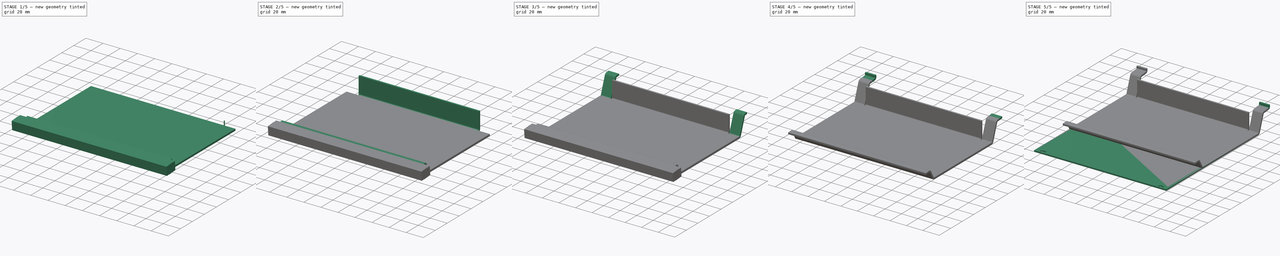
[diagram: build sequence overview — one tinted view per stage of 5, left to right]
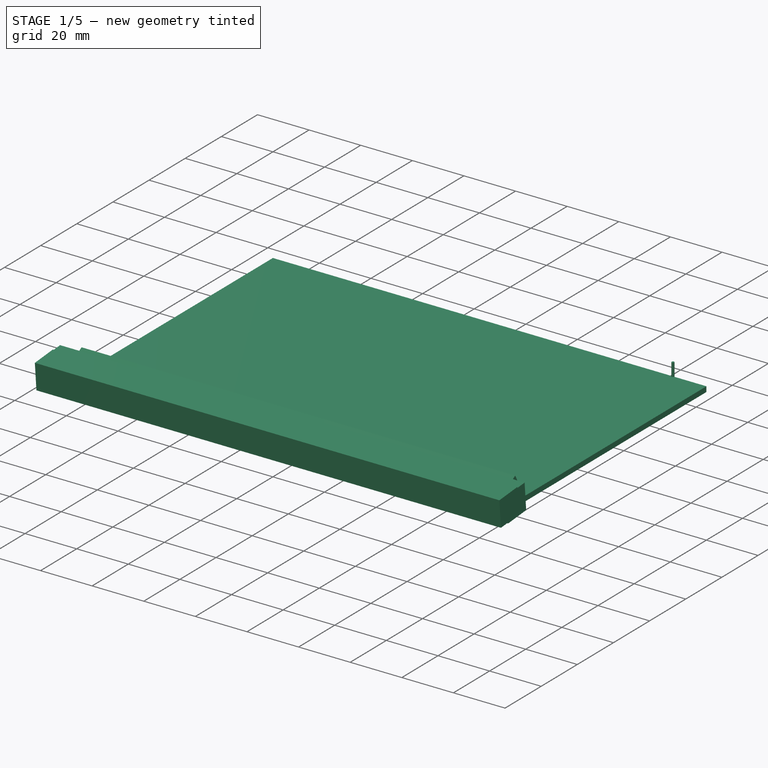
[diagram: stage 1 of 5 — iso view after this stage's code; geometry added in this stage tinted green]
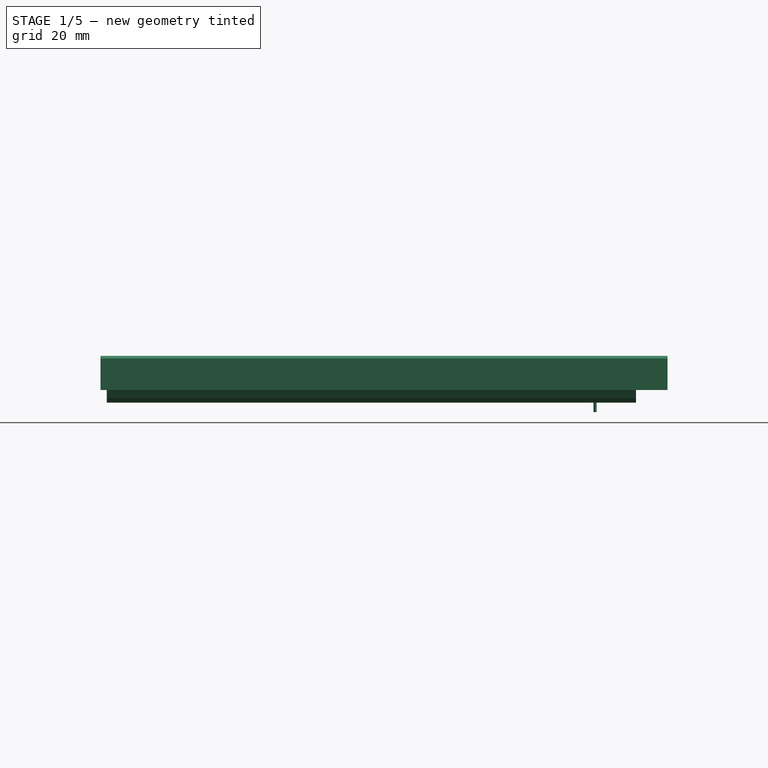
[diagram: stage 1 of 5 — front view after this stage's code; geometry added in this stage tinted green]
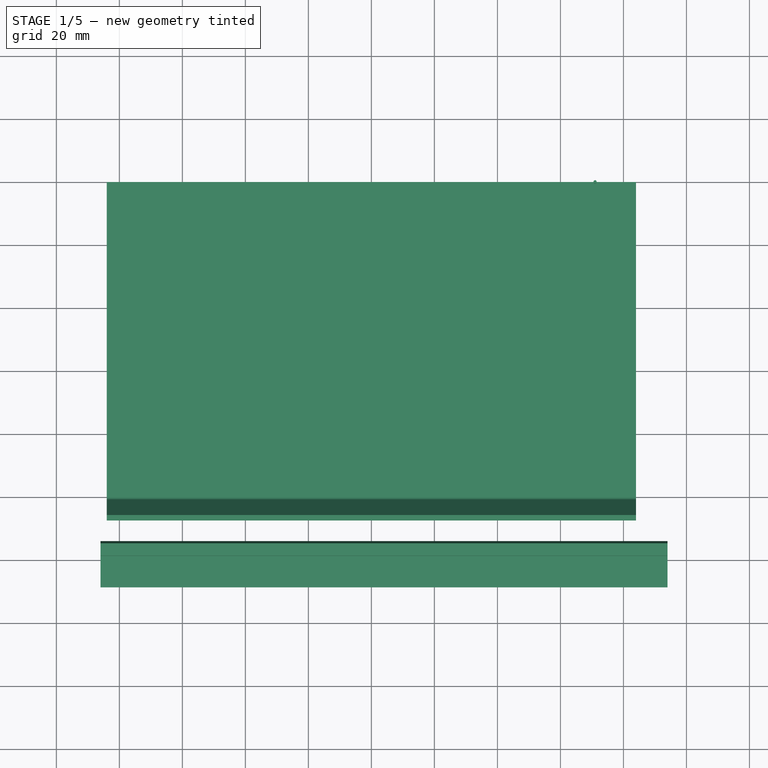
[diagram: stage 1 of 5 — top view after this stage's code; geometry added in this stage tinted green]
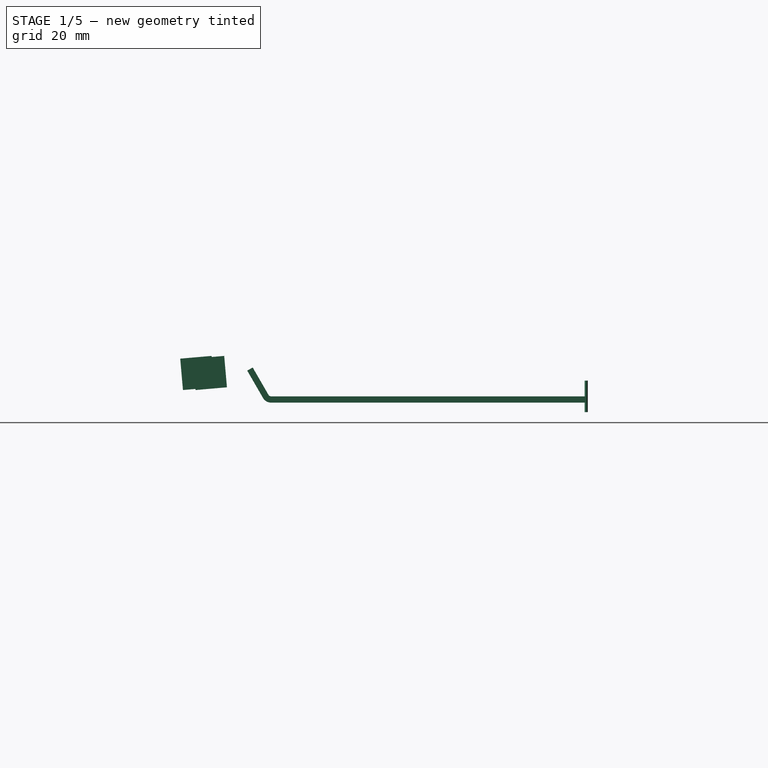
[diagram: stage 1 of 5 — right view after this stage's code; geometry added in this stage tinted green]
FCSTD DOCUMENT  (FreeCAD 0.17R13424 (Git))
Label: case
License: All rights reserved
LicenseURL: http://en.wikipedia.org/wiki/All_rights_reserved
objects: Part::FeaturePython×13, Sketcher::SketchObject×4, Part::Cut×4, Part::Box×3, PartDesign::Pad×2, PartDesign::Pocket×2, PartDesign::Body×2, Part::Cylinder×2, App::Part×2
note: 36 computed .brp shape members not serialized (recipe doc carries the construction recipe); baked Part::Feature solids carry a one-line shape summary decoded from their .brp

FEATURE [PartDesign::Body] Body  label="Board"
  Group = -> [Sketch,Pad,Sketch001,Pad001,Sketch002,Pocket,Sketch003,Pocket001]
  Origin = -> Origin
  Placement = pos=(0,47.65,18.82) rot=(1,0,0;0.087266rad)
  Tip = -> Pocket001
FEATURE [PartDesign::Body] Body001  label="Case"
  Origin = -> Origin001
FEATURE [Part::Box] Box  label="Cube"
  AttacherType = Attacher::AttachEngine3D
  Height = 2
  Length = 168
  Placement = pos=(-84,0,0) rot=(0,0,1;0rad)
  Width = 100
FEATURE [Part::FeaturePython] Bend  # WARN: FeaturePython — macro-defined, semantics opaque (R4)
  angle = 60
  baseObject = -> Box [Face3]
  gap1 = 0
  gap2 = 0
  invert = false
  length = 10
  radius = 1
  reliefd = 1
  reliefw = 0.5
FEATURE [Part::Cylinder] Cylinder
  Angle = 360
  AttacherType = Attacher::AttachEngine3D
  Height = 10
  Placement = pos=(71,100,-3) rot=(0,0,1;0rad)
  Radius = 0.5
FEATURE [Part::Box] Box001  label="Cube001"
  AttacherType = Attacher::AttachEngine3D
  Height = 10
  Length = 180
  Placement = pos=(-86,-28,4) rot=(1,0,0;0.087266rad)
  Width = 10
FEATURE [Part::Box] Box002  label="Cube002"
  AttacherType = Attacher::AttachEngine3D
  Height = 10
  Length = 180
  Placement = pos=(-86,-24,4) rot=(1,0,0;0.087266rad)
  Width = 10
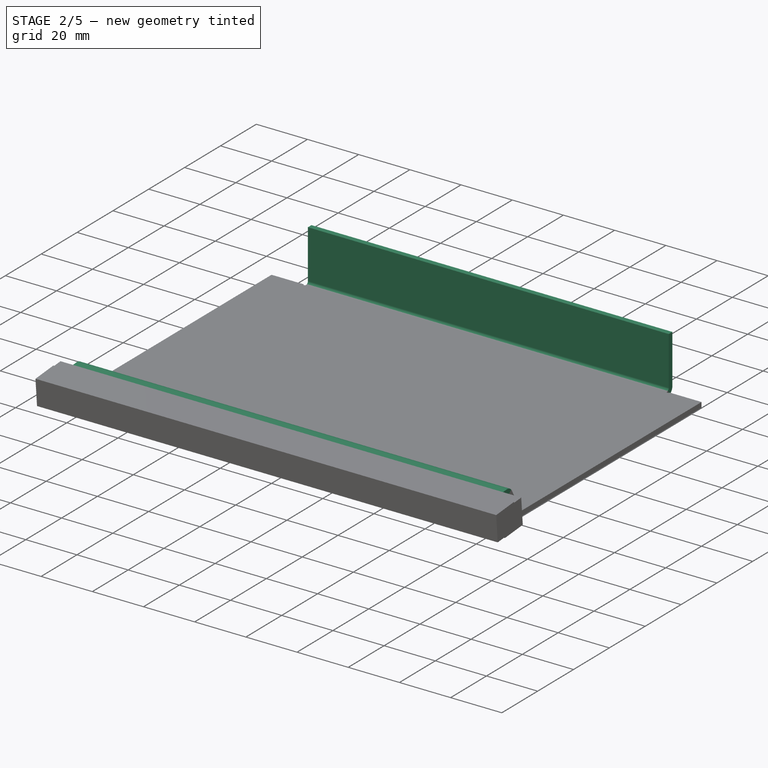
[diagram: stage 2 of 5 — iso view after this stage's code; geometry added in this stage tinted green]
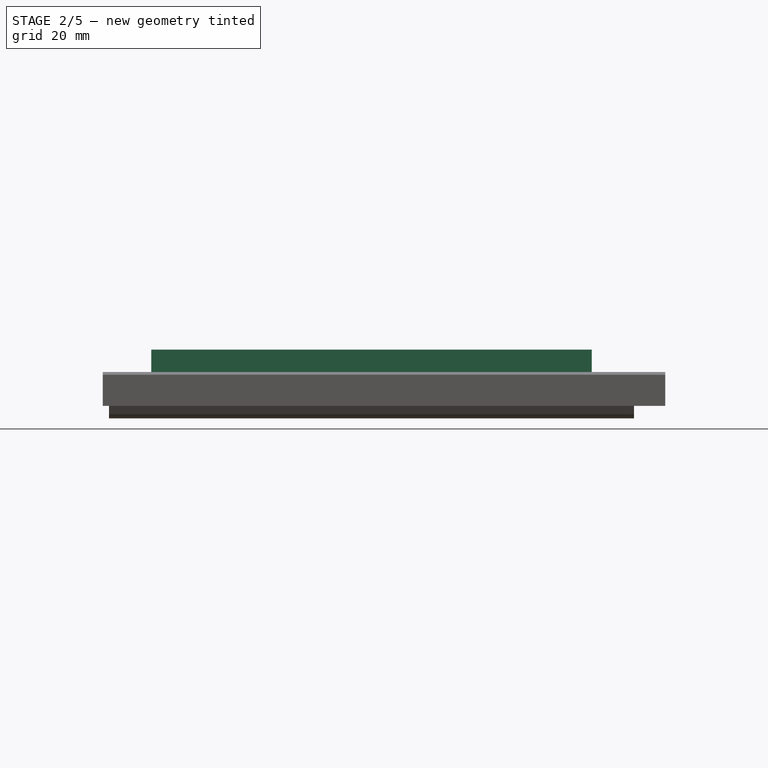
[diagram: stage 2 of 5 — front view after this stage's code; geometry added in this stage tinted green]
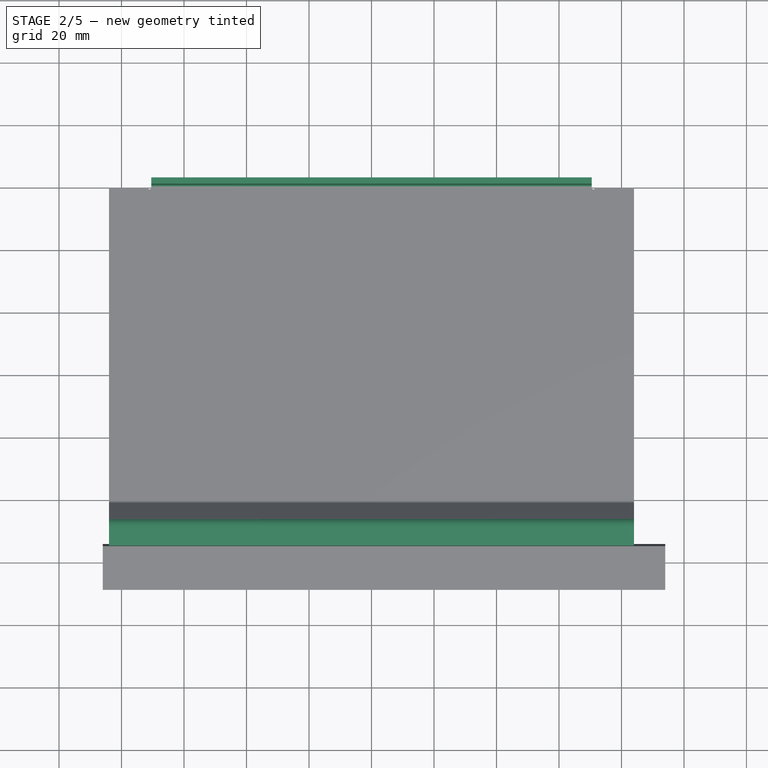
[diagram: stage 2 of 5 — top view after this stage's code; geometry added in this stage tinted green]
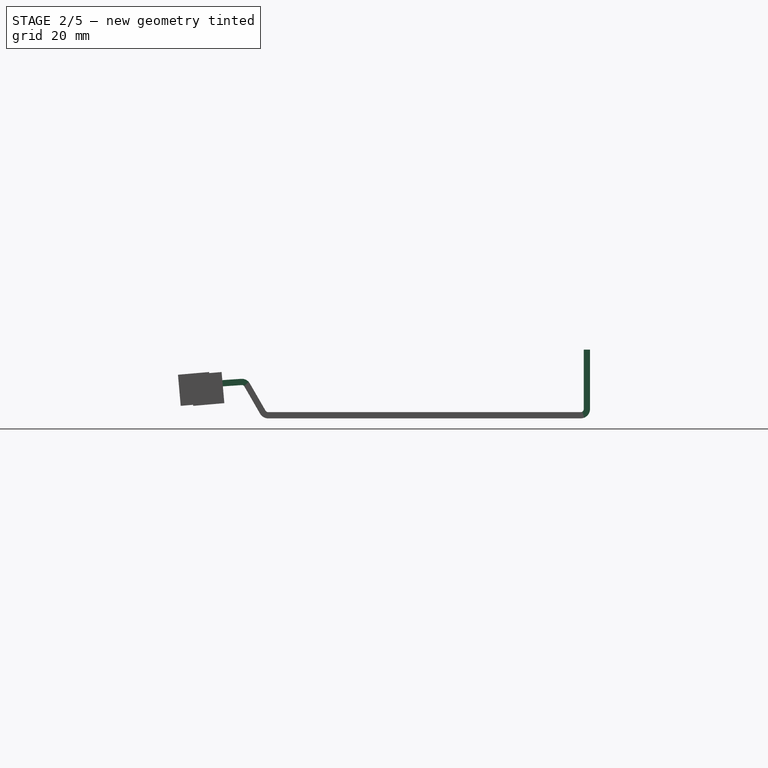
[diagram: stage 2 of 5 — right view after this stage's code; geometry added in this stage tinted green]
FEATURE [Part::FeaturePython] Bend001  # WARN: FeaturePython — macro-defined, semantics opaque (R4)
  angle = 64
  baseObject = -> Bend [Face1]
  gap1 = 0
  gap2 = 0
  invert = true
  length = 10
  radius = 1
  reliefd = 1
  reliefw = 0.5
FEATURE [App::Part] Part  label="board"
  Group = -> [Body]
  License = CC BY 3.0
  LicenseURL = http://creativecommons.org/licenses/by/3.0/
  Origin = -> Origin002
FEATURE [Part::Cylinder] Cylinder001
  Angle = 360
  AttacherType = Attacher::AttachEngine3D
  Height = 10
  Placement = pos=(-71,100,-3) rot=(0,0,1;0rad)
  Radius = 0.5
FEATURE [Part::Cut] Cut
  Base = -> Bend001
  Refine = true
  Tool = -> Cylinder
FEATURE [Part::Cut] Cut001
  Base = -> Cut
  Refine = true
  Tool = -> Cylinder001
FEATURE [Part::FeaturePython] Bend002  label="mittelteil"  # WARN: FeaturePython — macro-defined, semantics opaque (R4)
  angle = 90
  baseObject = -> Cut001 [Face16]
  gap1 = 0
  gap2 = 0
  invert = false
  length = 19
  radius = 1
  reliefd = 1
  reliefw = 0.5
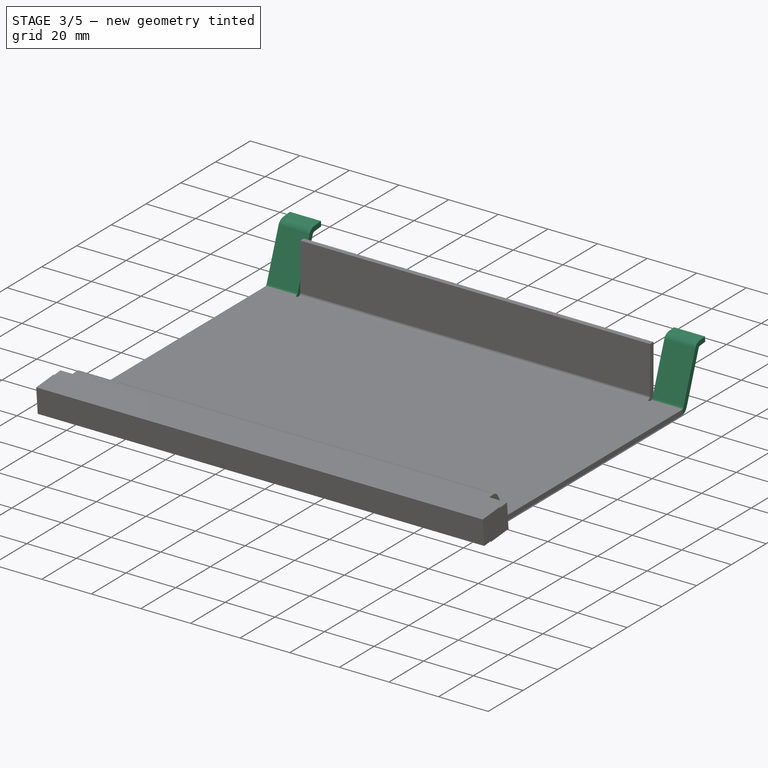
[diagram: stage 3 of 5 — iso view after this stage's code; geometry added in this stage tinted green]
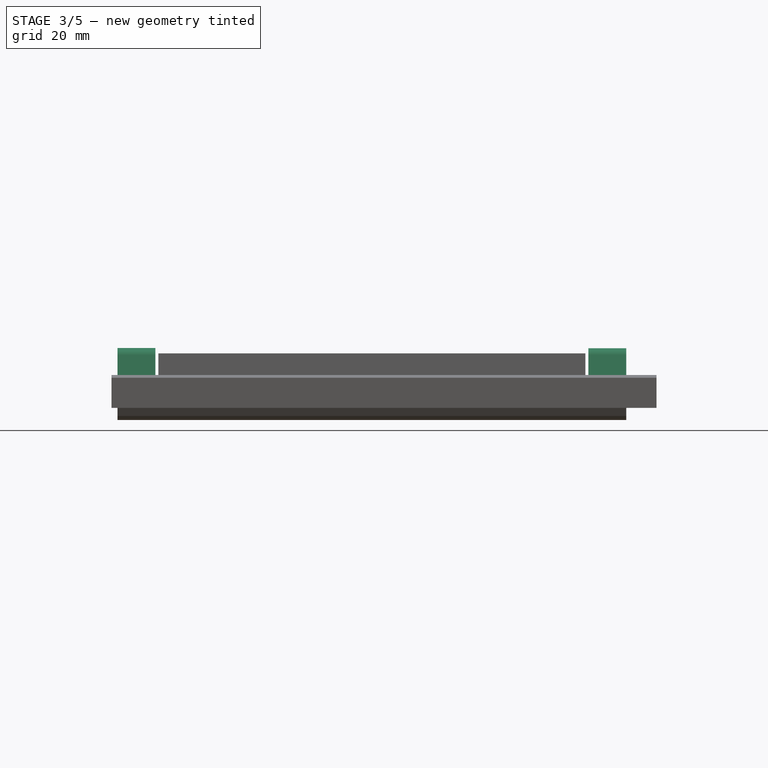
[diagram: stage 3 of 5 — front view after this stage's code; geometry added in this stage tinted green]
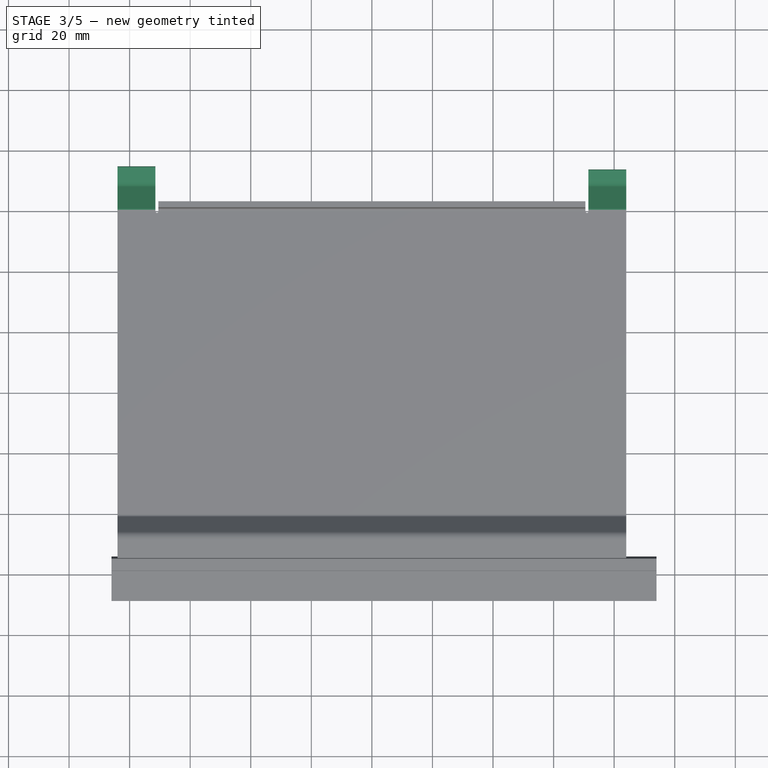
[diagram: stage 3 of 5 — top view after this stage's code; geometry added in this stage tinted green]
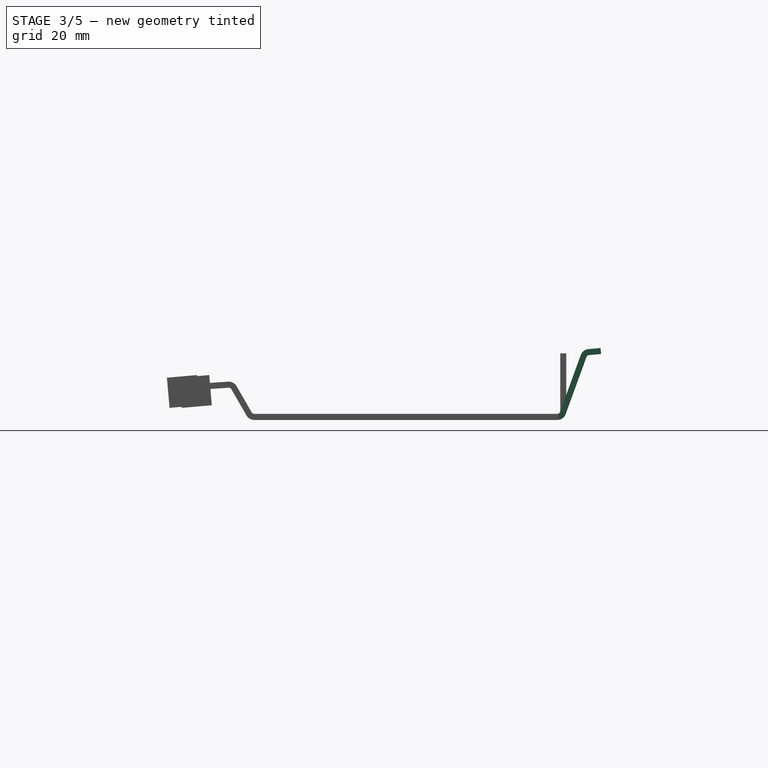
[diagram: stage 3 of 5 — right view after this stage's code; geometry added in this stage tinted green]
FEATURE [Part::FeaturePython] Bend003  label="Seitenflügel links"  # WARN: FeaturePython — macro-defined, semantics opaque (R4)
  angle = 70
  baseObject = -> Bend002 [Face14]
  gap1 = 0
  gap2 = 0
  invert = false
  length = 20
  radius = 1
  reliefd = 1
  reliefw = 0.5
FEATURE [Part::FeaturePython] Bend004  label="seitenflügelr"  # WARN: FeaturePython — macro-defined, semantics opaque (R4)
  angle = 70
  baseObject = -> Bend003 [Face17]
  gap1 = 0
  gap2 = 0
  invert = false
  length = 20
  radius = 1
  reliefd = 1
  reliefw = 0.5
FEATURE [Part::FeaturePython] Bend005  # WARN: FeaturePython — macro-defined, semantics opaque (R4)
  angle = 65
  baseObject = -> Bend004 [Face1]
  gap1 = 0
  gap2 = 0
  invert = true
  length = 4
  radius = 1
  reliefd = 1
  reliefw = 0.5
FEATURE [Part::FeaturePython] Bend006  # WARN: FeaturePython — macro-defined, semantics opaque (R4)
  angle = 65
  baseObject = -> Bend005 [Face49]
  gap1 = 0
  gap2 = 0
  invert = true
  length = 3
  radius = 1
  reliefd = 1
  reliefw = 0.5
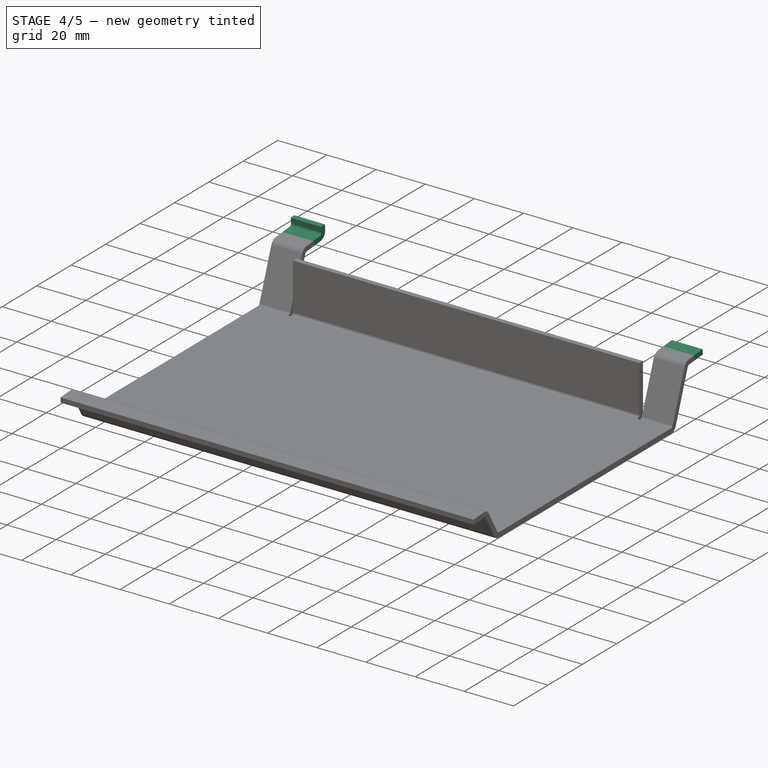
[diagram: stage 4 of 5 — iso view after this stage's code; geometry added in this stage tinted green]
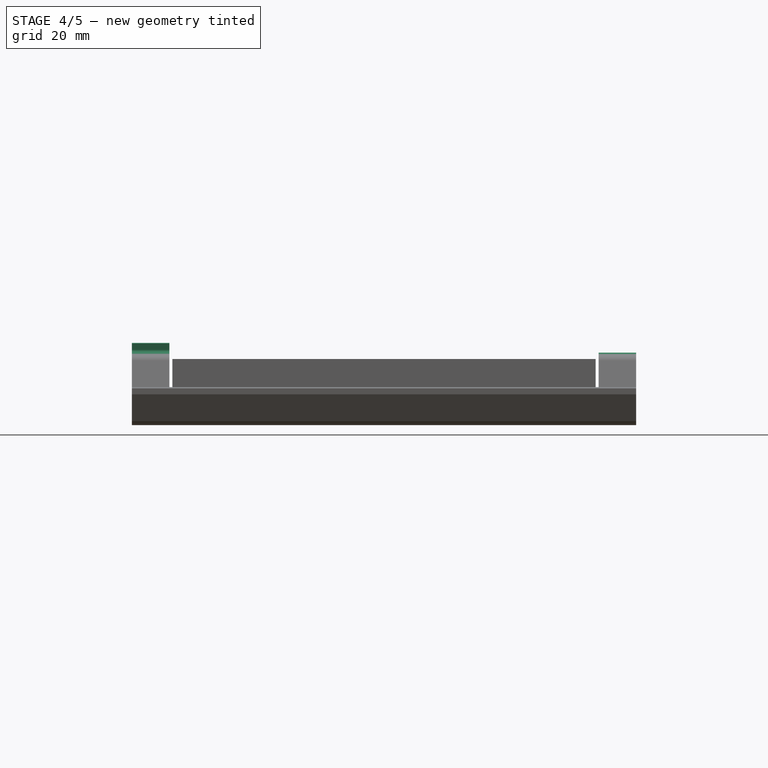
[diagram: stage 4 of 5 — front view after this stage's code; geometry added in this stage tinted green]
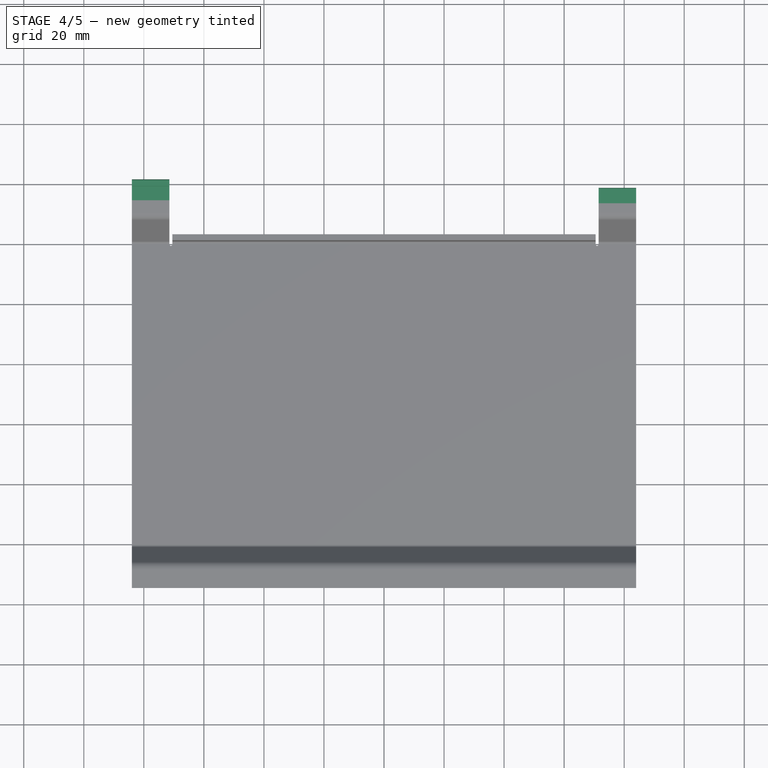
[diagram: stage 4 of 5 — top view after this stage's code; geometry added in this stage tinted green]
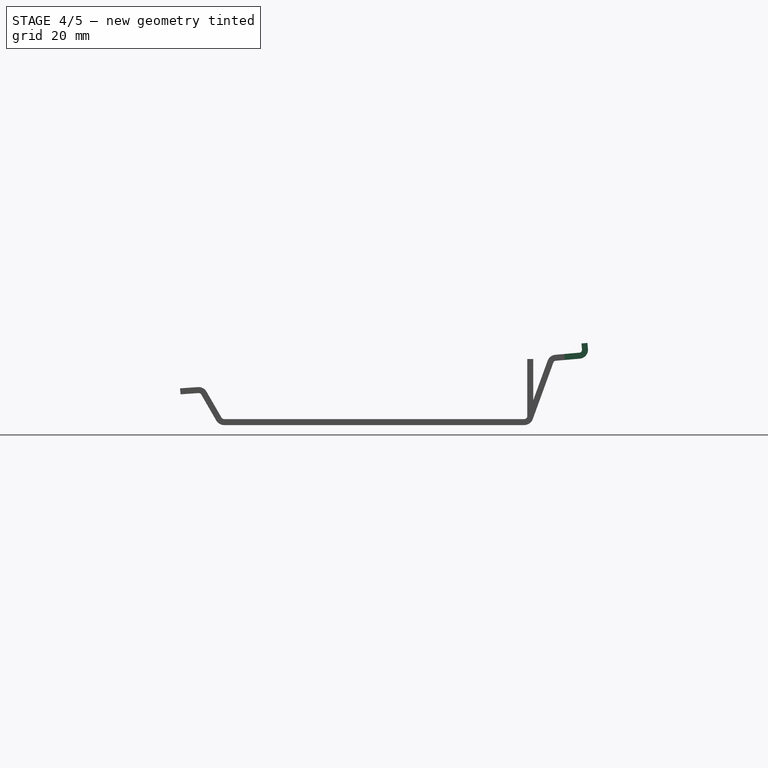
[diagram: stage 4 of 5 — right view after this stage's code; geometry added in this stage tinted green]
FEATURE [Part::Cut] Cut002
  Base = -> Bend006
  Refine = true
  Tool = -> Box001
FEATURE [Part::Cut] Cut003
  Base = -> Cut002
  Refine = true
  Tool = -> Box002
FEATURE [Part::FeaturePython] Extrude  # WARN: FeaturePython — macro-defined, semantics opaque (R4)
  baseObject = -> Cut003 [Face1]
  gap1 = 0
  gap2 = 0
  length = 5
FEATURE [Part::FeaturePython] Extrude001  # WARN: FeaturePython — macro-defined, semantics opaque (R4)
  baseObject = -> Extrude [Face42]
  gap1 = 0
  gap2 = 0
  length = 4
FEATURE [Part::FeaturePython] Bend007  # WARN: FeaturePython — macro-defined, semantics opaque (R4)
  angle = 90
  baseObject = -> Extrude001 [Face5]
  gap1 = 0
  gap2 = 0
  invert = false
  length = 2
  radius = 1
  reliefd = 1
  reliefw = 0.5
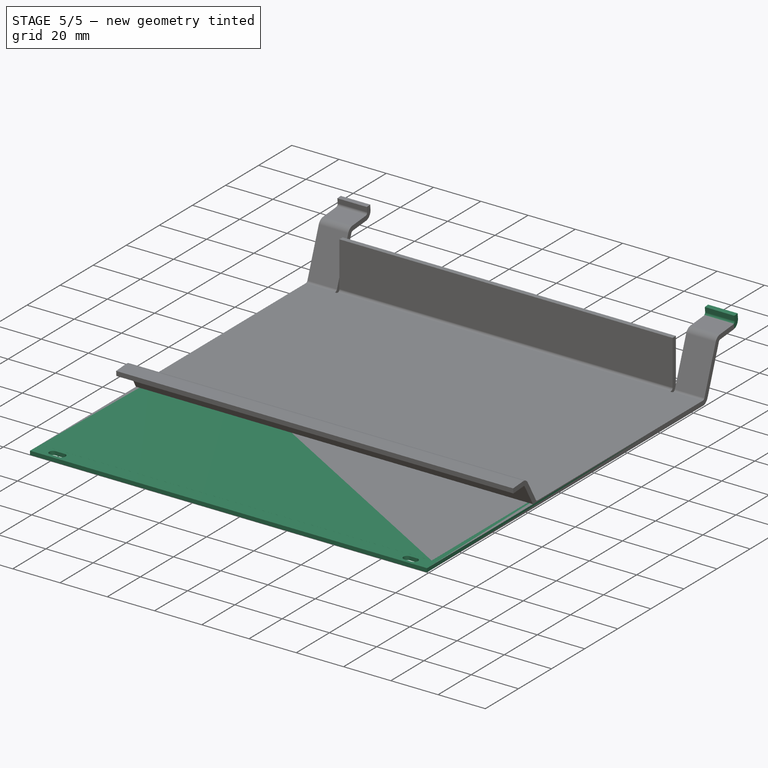
[diagram: stage 5 of 5 — iso view after this stage's code; geometry added in this stage tinted green]
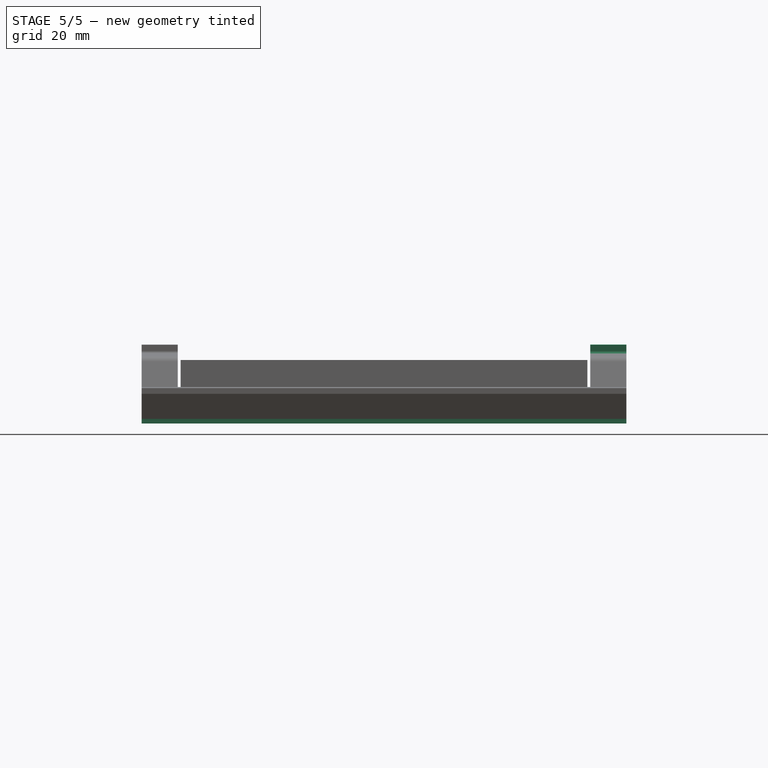
[diagram: stage 5 of 5 — front view after this stage's code; geometry added in this stage tinted green]
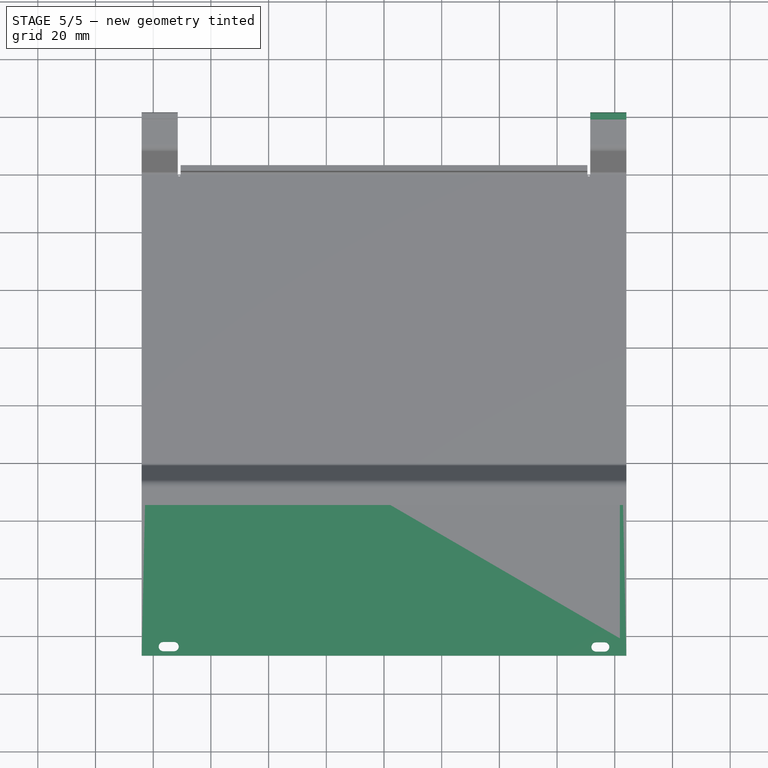
[diagram: stage 5 of 5 — top view after this stage's code; geometry added in this stage tinted green]
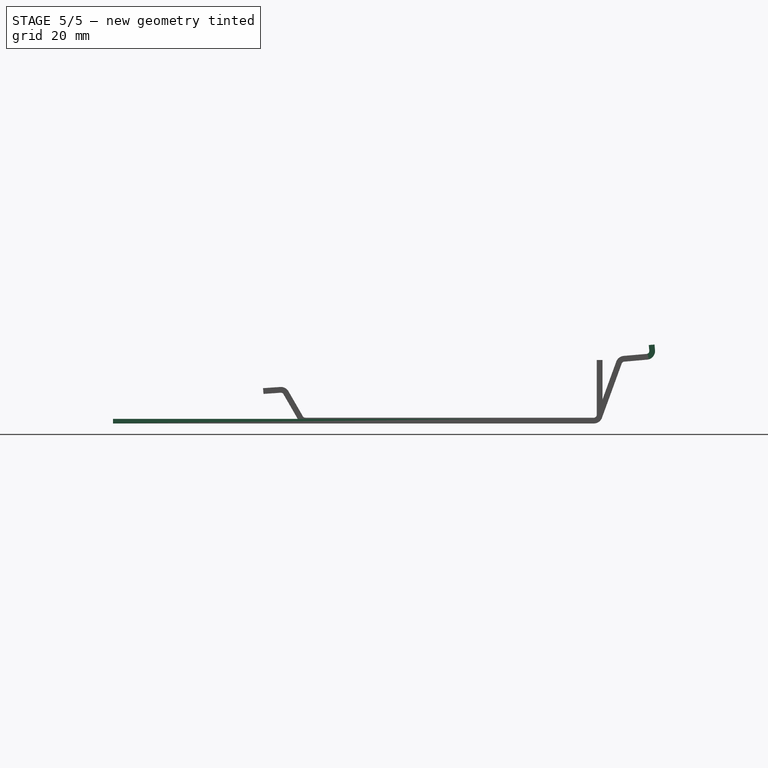
[diagram: stage 5 of 5 — right view after this stage's code; geometry added in this stage tinted green]
FEATURE [Sketcher::SketchObject] Sketch
  MapMode = 5
  Support = -> [XY_Plane]
  sketch-geometry (4):
    g0: LineSegment StartX=-84 StartY=66.7 StartZ=0 EndX=84 EndY=66.7 EndZ=0
    g1: LineSegment StartX=84 StartY=66.7 StartZ=0 EndX=84 EndY=-66.7 EndZ=0
    g2: LineSegment StartX=84 StartY=-66.7 StartZ=0 EndX=-84 EndY=-66.7 EndZ=0
    g3: LineSegment StartX=-84 StartY=-66.7 StartZ=0 EndX=-84 EndY=66.7 EndZ=0
  constraints (12):
    c: Coincident(g0,g1)
    c: Coincident(g1,g2)
    c: Coincident(g2,g3)
    c: Coincident(g3,g0)
    c: Horizontal(g0)
    c: Horizontal(g2)
    c: Vertical(g1)
    c: Vertical(g3)
    c: Symmetric(g0,g0,g-2)
    c: DistanceX(g2,g2) = 168
    c: DistanceY(g1,g1) = 133.4
    c: Symmetric(g2,g0,g-1)
FEATURE [PartDesign::Pad] Pad
  Length = 1.6
  Length2 = 100
  Profile = -> Sketch
  Refine = true
  Type = 0
FEATURE [Sketcher::SketchObject] Sketch001
  ExternalGeometry = -> [Pad]
  MapMode = 5
  Placement = pos=(0,0,1.6) rot=(0,0,1;0rad)
  Support = -> [Pad]
  sketch-geometry (4):
    g0: LineSegment StartX=-81.75 StartY=34.3 StartZ=0 EndX=81.75 EndY=34.3 EndZ=0
    g1: LineSegment StartX=81.75 StartY=34.3 StartZ=0 EndX=81.75 EndY=-60.7 EndZ=0
    g2: LineSegment StartX=81.75 StartY=-60.7 StartZ=0 EndX=-81.75 EndY=-60.7 EndZ=0
    g3: LineSegment StartX=-81.75 StartY=-60.7 StartZ=0 EndX=-81.75 EndY=34.3 EndZ=0
  constraints (12):
    c: Coincident(g0,g1)
    c: Coincident(g1,g2)
    c: Coincident(g2,g3)
    c: Coincident(g3,g0)
    c: Horizontal(g0)
    c: Horizontal(g2)
    c: Vertical(g1)
    c: Vertical(g3)
    c: Symmetric(g0,g0,g-2)
    c: DistanceX(g0,g0) = 163.5
    c: DistanceY(g1,g1) = 95
    c: DistanceY(g-3,g1) = 6
FEATURE [PartDesign::Pad] Pad001
  BaseFeature = -> Pad
  Length = 0.01
  Length2 = 100
  Profile = -> Sketch001
  Refine = true
  Type = 0
FEATURE [Sketcher::SketchObject] Sketch002
  ExternalGeometry = -> [Pad001]
  MapMode = 5
  Placement = pos=(0,0,1.6) rot=(0,0,1;0rad)
  Support = -> [Pad001]
  sketch-geometry (4):
    g0: ArcOfCircle CenterX=-76.5 CenterY=-63.5659 CenterZ=0 NormalX=0 NormalY=0 NormalZ=1 AngleXU=0 Radius=1.6 StartAngle=1.5708 EndAngle=4.71239
    g1: ArcOfCircle CenterX=-72.7513 CenterY=-63.5659 CenterZ=0 NormalX=0 NormalY=0 NormalZ=1 AngleXU=0 Radius=1.6 StartAngle=4.71239 EndAngle=7.85398
    g2: LineSegment StartX=-76.5 StartY=-65.1659 StartZ=0 EndX=-72.7513 EndY=-65.1659 EndZ=0
    g3: LineSegment StartX=-76.5 StartY=-61.9659 StartZ=0 EndX=-72.7513 EndY=-61.9659 EndZ=0
  constraints (8):
    c: Tangent(g0,g3) = 1.5708
    c: Tangent(g0,g2) = -1.5708
    c: Tangent(g2,g1) = -1.5708
    c: Tangent(g3,g1) = 1.5708
    c: Horizontal(g2)
    c: Equal(g0,g1)
    c: Radius(g1) = 1.6
    c: DistanceX(g-3,g0) = 7.5
FEATURE [PartDesign::Pocket] Pocket
  BaseFeature = -> Pad001
  Length = 5
  Length2 = 100
  Profile = -> Sketch002
  Refine = true
  Type = 1
FEATURE [Sketcher::SketchObject] Sketch003
  ExternalGeometry = -> [Pocket]
  MapMode = 5
  Placement = pos=(0,0,1.6) rot=(0,0,1;0rad)
  Support = -> [Pocket]
  sketch-geometry (12):
    g0: ArcOfCircle CenterX=73.5 CenterY=-63.7 CenterZ=0 NormalX=0 NormalY=0 NormalZ=1 AngleXU=0 Radius=1.6 StartAngle=1.5708 EndAngle=4.71239
    g1: ArcOfCircle CenterX=76.5 CenterY=-63.7 CenterZ=0 NormalX=0 NormalY=0 NormalZ=1 AngleXU=0 Radius=1.6 StartAngle=4.71239 EndAngle=7.85398
    g2: LineSegment StartX=73.5 StartY=-65.3 StartZ=0 EndX=76.5 EndY=-65.3 EndZ=0
    g3: LineSegment StartX=73.5 StartY=-62.1 StartZ=0 EndX=76.5 EndY=-62.1 EndZ=0
    g4: ArcOfCircle CenterX=73.5 CenterY=63.7 CenterZ=0 NormalX=0 NormalY=0 NormalZ=1 AngleXU=0 Radius=1.6 StartAngle=1.5708 EndAngle=4.71239
    g5: ArcOfCircle CenterX=76.5 CenterY=63.7 CenterZ=0 NormalX=0 NormalY=0 NormalZ=1 AngleXU=0 Radius=1.6 StartAngle=4.71239 EndAngle=7.85398
    g6: LineSegment StartX=73.5 StartY=62.1 StartZ=0 EndX=76.5 EndY=62.1 EndZ=0
    g7: LineSegment StartX=73.5 StartY=65.3 StartZ=0 EndX=76.5 EndY=65.3 EndZ=0
    g8: ArcOfCircle CenterX=-76.5 CenterY=63.7 CenterZ=0 NormalX=0 NormalY=0 NormalZ=1 AngleXU=0 Radius=1.6 StartAngle=1.5708 EndAngle=4.71239
    g9: ArcOfCircle CenterX=-73.5 CenterY=63.7 CenterZ=0 NormalX=0 NormalY=0 NormalZ=1 AngleXU=0 Radius=1.6 StartAngle=4.71239 EndAngle=7.85398
    g10: LineSegment StartX=-76.5 StartY=62.1 StartZ=0 EndX=-73.5 EndY=62.1 EndZ=0
    g11: LineSegment StartX=-76.5 StartY=65.3 StartZ=0 EndX=-73.5 EndY=65.3 EndZ=0
  constraints (30):
    c: Tangent(g0,g3) = 1.5708
    c: Tangent(g0,g2) = -1.5708
    c: Tangent(g2,g1) = -1.5708
    c: Tangent(g3,g1) = 1.5708
    c: Horizontal(g2)
    c: Equal(g0,g1)
    c: Tangent(g4,g7) = 1.5708
    c: Tangent(g4,g6) = -1.5708
    c: Tangent(g6,g5) = -1.5708
    c: Tangent(g7,g5) = 1.5708
    c: Horizontal(g6)
    c: Equal(g4,g5)
    c: Tangent(g8,g11) = 1.5708
    c: Tangent(g8,g10) = -1.5708
    c: Tangent(g10,g9) = -1.5708
    c: Tangent(g11,g9) = 1.5708
    c: Horizontal(g10)
    c: Equal(g8,g9)
    c: Radius(g1) = 1.6
    c: Radius(g5) = 1.6
    c: Radius(g9) = 1.6
    c: DistanceX(g8,g9) = 3
    c: DistanceX(g4,g5) = 3
    c: DistanceX(g0,g1) = 3
    c: DistanceX(g-3,g8) = 7.5
    c: DistanceY(g8,g-3) = 3
    c: DistanceX(g5,g-4) = 7.5
    c: DistanceY(g5,g-4) = 3
    c: DistanceY(g-4,g1) = 3
    c: DistanceX(g1,g-4) = 7.5
FEATURE [PartDesign::Pocket] Pocket001
  BaseFeature = -> Pocket
  Length = 5
  Length2 = 100
  Profile = -> Sketch003
  Refine = true
  Type = 1
FEATURE [Part::FeaturePython] Extrude002  # WARN: FeaturePython — macro-defined, semantics opaque (R4)
  baseObject = -> Bend007 [Face58]
  gap1 = 0
  gap2 = 0
  length = 2
FEATURE [Part::FeaturePython] Extrude003  # WARN: FeaturePython — macro-defined, semantics opaque (R4)
  baseObject = -> Bend007 [Face10]
  gap1 = 0
  gap2 = 0
  length = 10
FEATURE [Part::FeaturePython] Bend008  # WARN: FeaturePython — macro-defined, semantics opaque (R4)
  angle = 90
  baseObject = -> Bend007 [Face57]
  gap1 = 0
  gap2 = 0
  invert = false
  length = 2
  radius = 1
  reliefd = 1
  reliefw = 0.5
FEATURE [App::Part] Part001  label="case"
  Group = -> [Cylinder,Body001,Box,Bend,Bend001,Cut,Bend004,Bend002,Bend003,Cylinder001,Bend005,Cut001,Bend006,Box001,Cut002,Box002,Cut003,Extrude,Extrude001,Bend007,Extrude002,Extrude003,Bend008]
  License = CC BY 3.0
  LicenseURL = http://creativecommons.org/licenses/by/3.0/
  Origin = -> Origin003
  Placement = pos=(0,-4,-0.5) rot=(0,0,1;0rad)
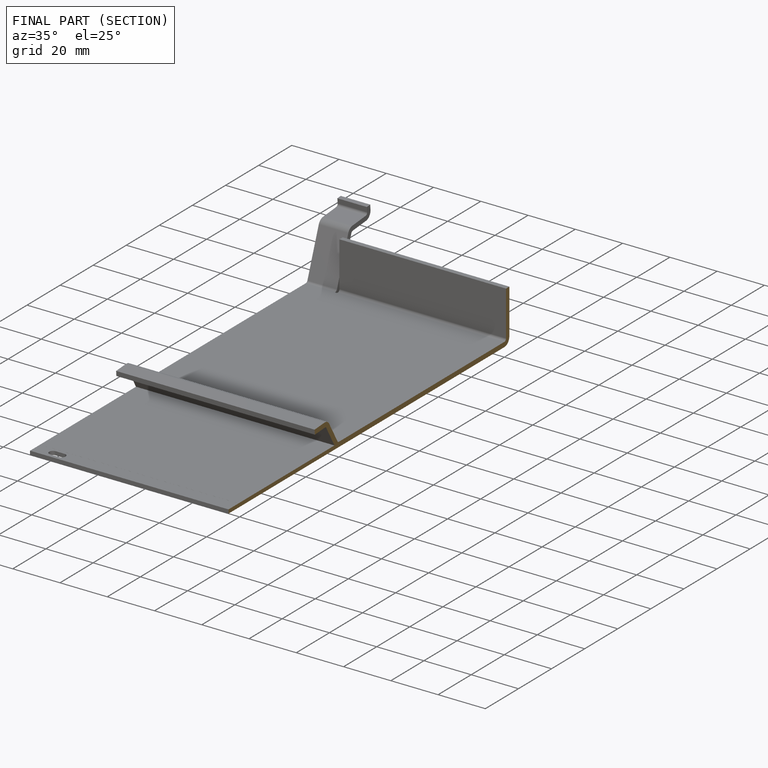
[diagram: finished part — half-section view (interior)]
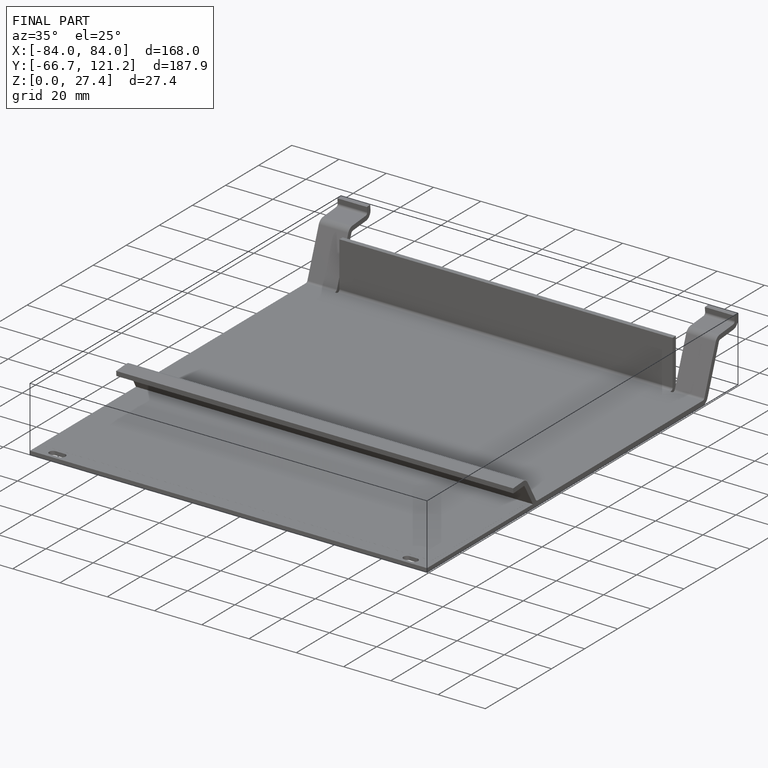
[diagram: finished part — iso view with bounding-box wireframe]
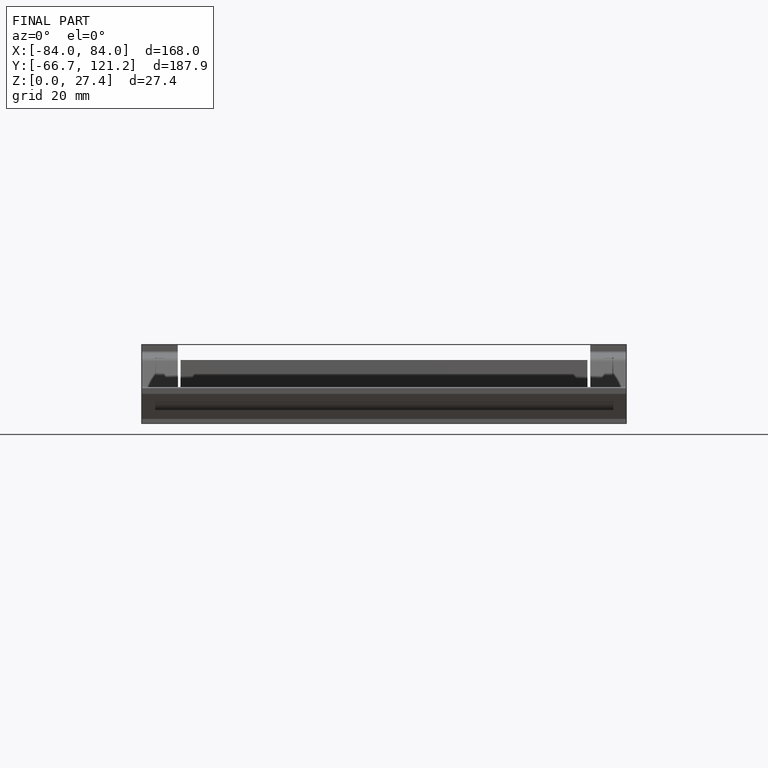
[diagram: finished part — front view with bounding-box wireframe]
